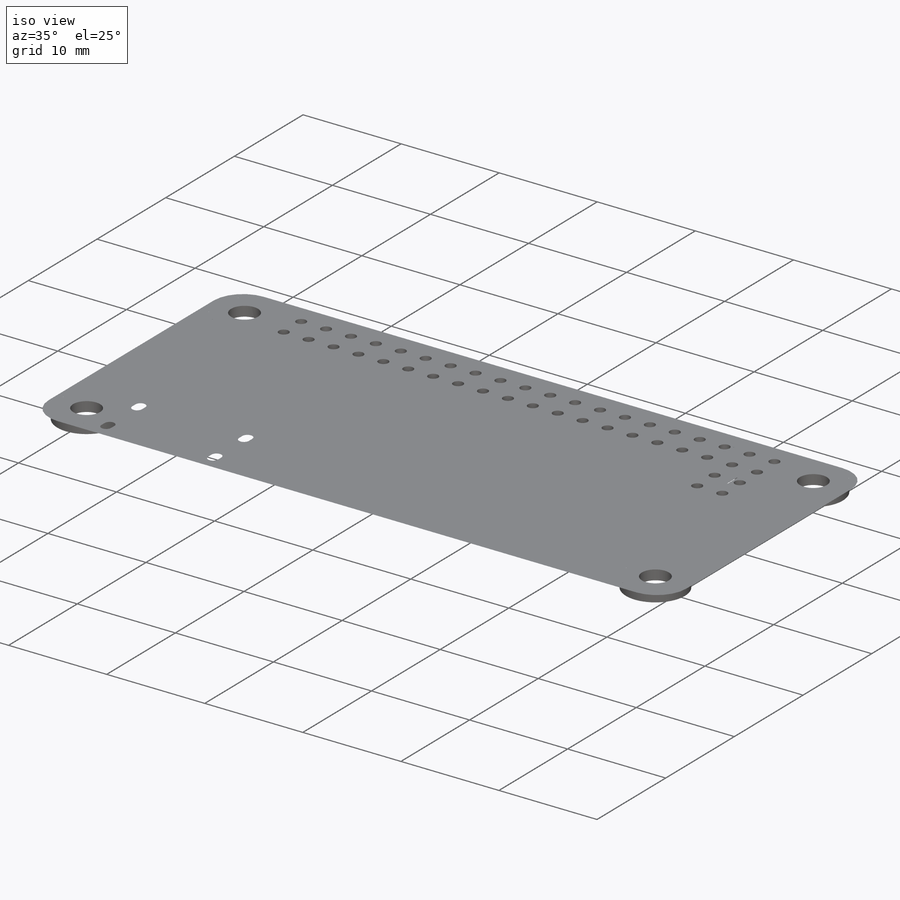
[diagram: iso view]
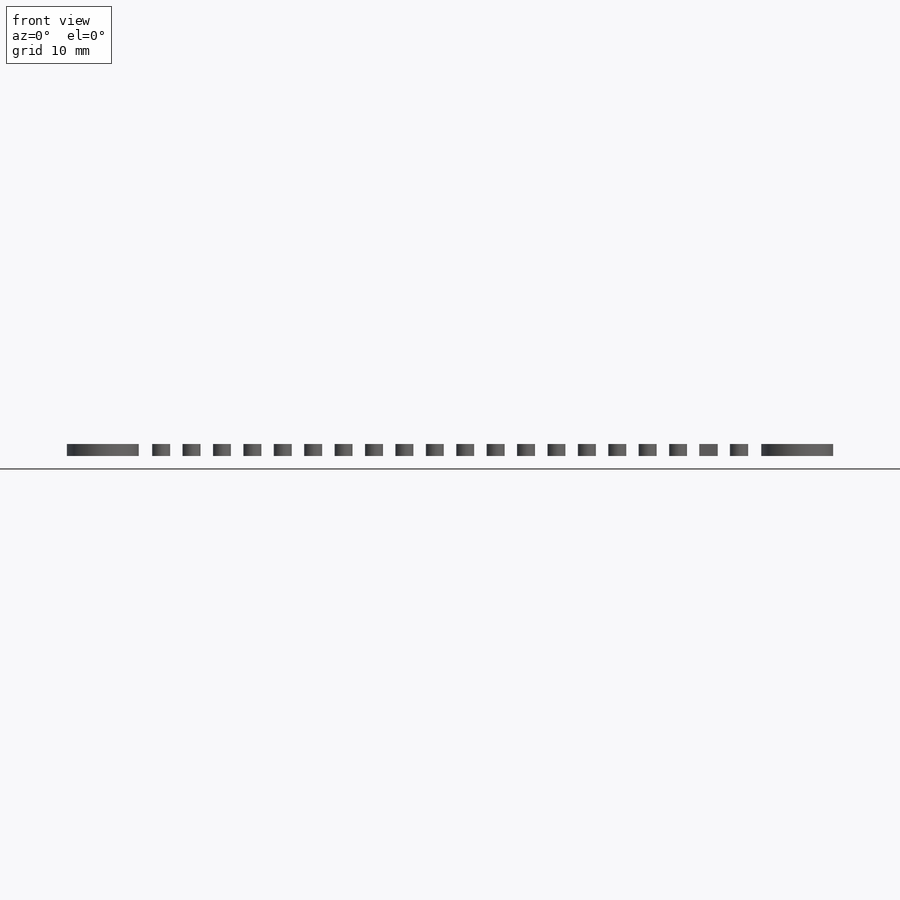
[diagram: front view]
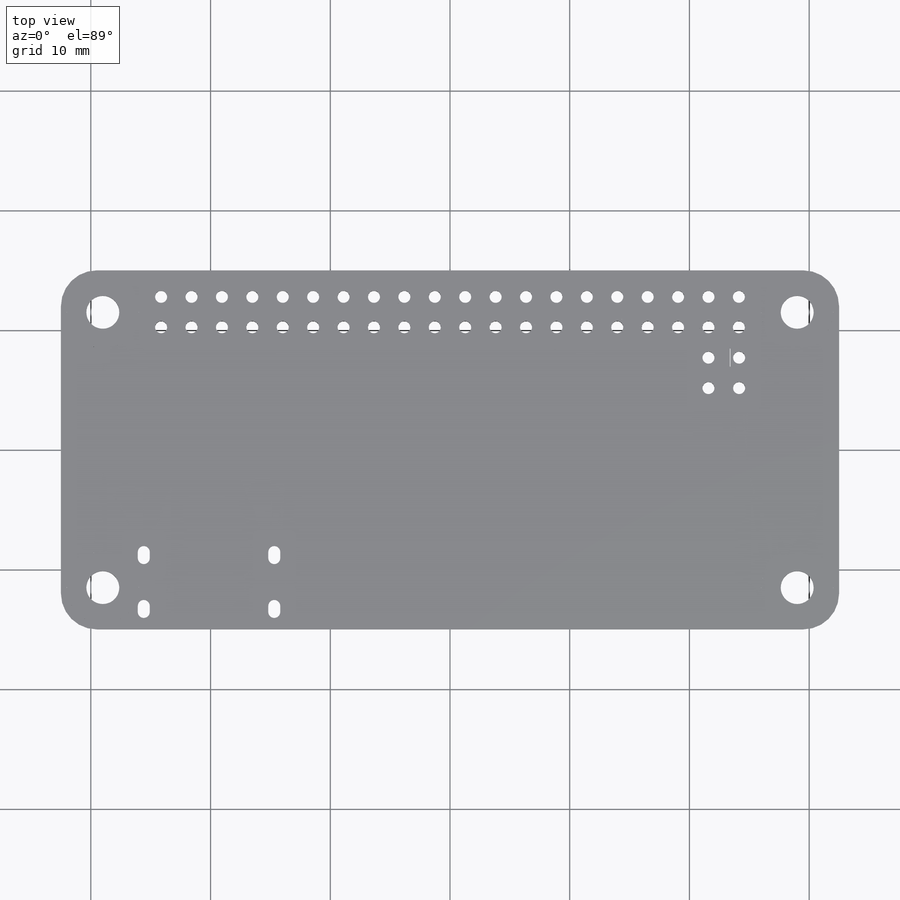
[diagram: top view]
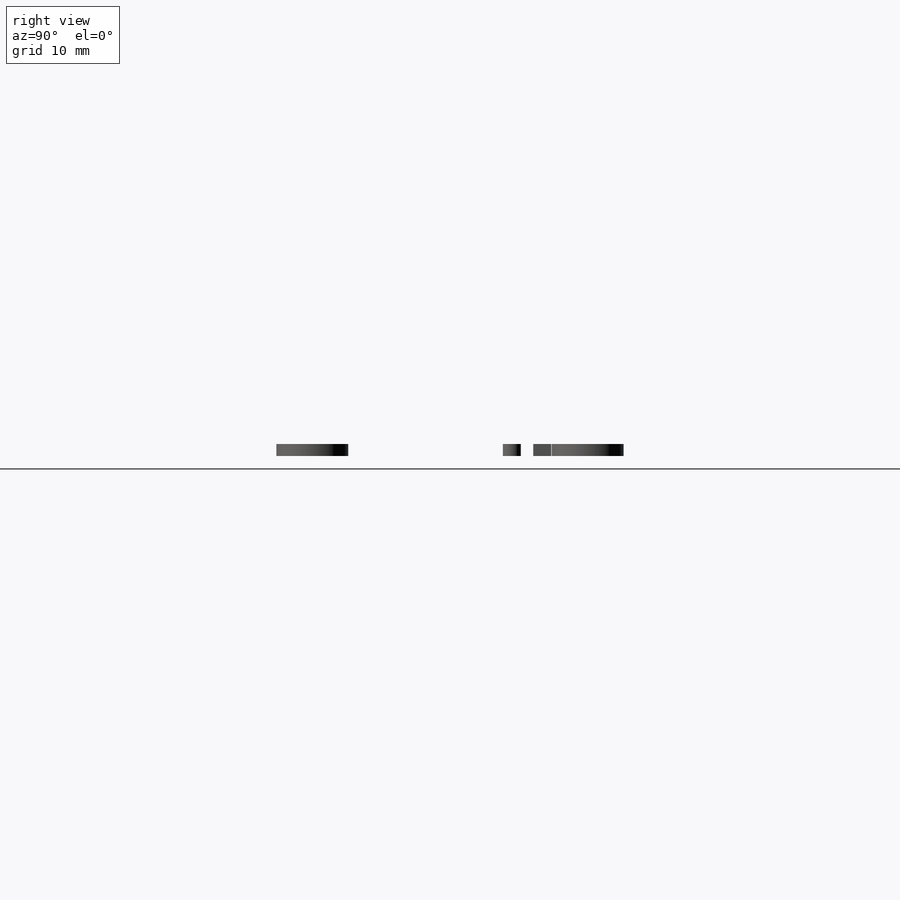
[diagram: right view]
SOLIDWORKS PART (.sldprt)
format: sldprt  version: not decoded by parser v0  size: 2,500,096 bytes
history: native  units: mm
features: sketch x5, extrude x4, mirror x2, material x1, pattern_linear x1, cut_extrude x1 (+12 scaffold rows collapsed)
feature tree (26):
  scaffold x12  (default folders/planes/origin — collapsed)
  material  "Material <not specified>"
  sketch  "Sketch1"  dims[c1.D3=3.0mm c1.D4=2.75mm c1.D5=6.0mm c1.D11=1.0mm c1.D12=1.0mm c2.D11=1.5mm c2.D15=1.5mm c2.D16=1.5mm c2.D27=6.0mm c2.D28=6.0mm c2.D1=65.0mm c2.D2=30.0mm c2.D5=29.5mm c2.D6=23.0mm c2.D7=29.0mm c2.D8=3.5mm c2.D9=50.0mm c2.D10=5.0mm c2.D13=1.3mm c2.D14=2.5mm c2.D4=51.0mm c3.D9=5.2mm c3.D10=29.0mm c3.D13=1.27mm c3.D17=2.54mm c3.D18=2.54mm c3.D19=2.54mm c3.D20=2.54mm c3.D21=2.54mm c3.D22=2.54mm c3.D23=1.5mm c3.D24=1.5mm c3.D25=1.5mm c3.D26=1.5mm c3.D14=20.0 c3.D12=2.0]
  extrude  "Boss-Extrude1"  Depth=1mm
  sketch  "Sketch2"  dims[c1.D1=~1.423004mm c1.D2=~0.784051mm c2.D1=1.5mm]
  extrude  "Boss-Extrude2"  Depth=1mm
  pattern_linear  "LPattern2"  Count1=20 Count2=2 Spacing1=2.54mm Spacing2=2.54mm
  sketch  "Sketch3"  dims[D1=1.0mm D2=1.0mm D3=1.0mm D4=1.0mm]
  extrude  "Boss-Extrude3"  Depth=1mm
  sketch  "Sketch4"  dims[D1=2.75mm]
  extrude  "Boss-Extrude4"  Depth=1mm
  mirror  "Mirror1"
  mirror  "Mirror2"
  sketch  "Sketch5"  dims[D2=0.5mm D1=0.5mm D3=2.0]
  cut_extrude  "Cut-Extrude1"  Depth=1mm
decode coverage: 11 of 13 modeling features carry decoded parameters
note: ~ marks probable driven/reference dimensions
note: suppression state not decoded; provenance and decode notes live in map.json
